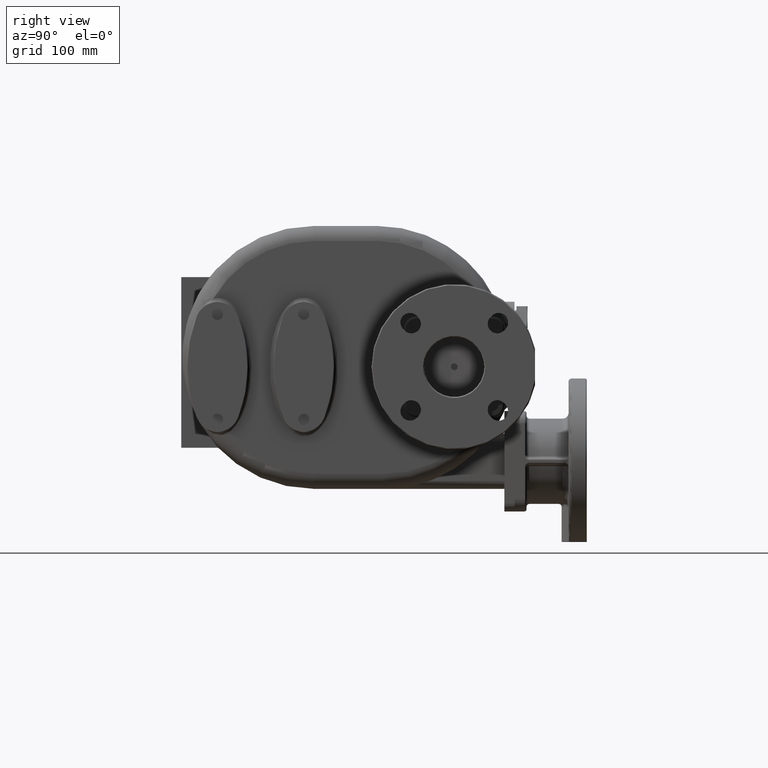
[diagram: clean part render]
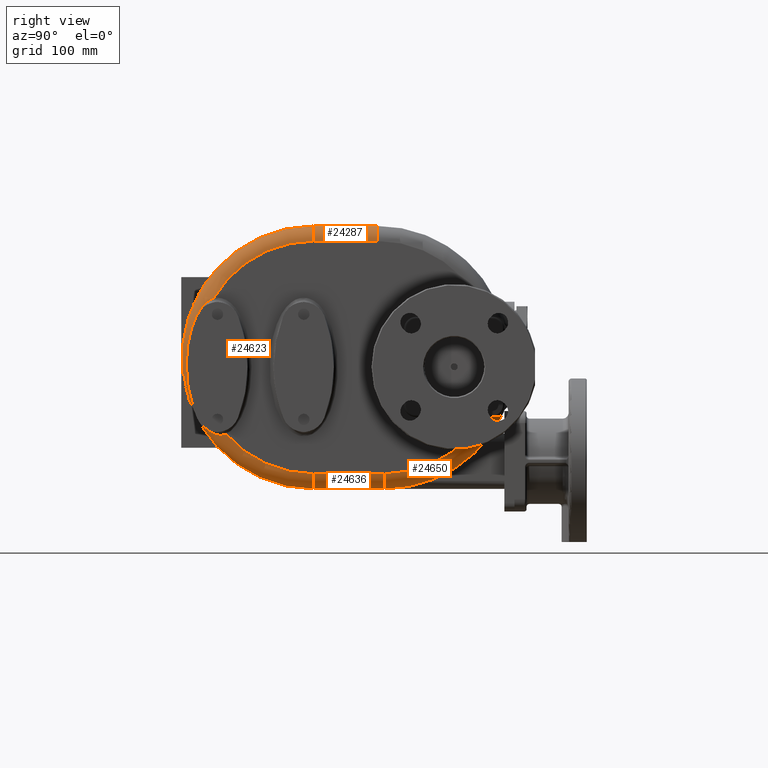
[diagram: same view with one multi-face feature highlighted, each face labeled with its STEP entity id]
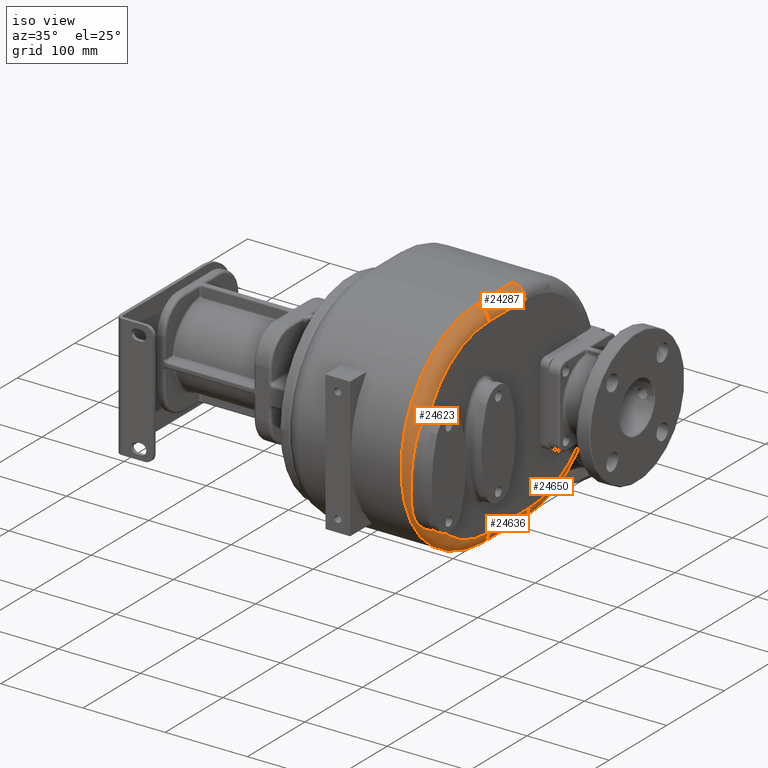
[diagram: same view with one multi-face feature highlighted, each face labeled with its STEP entity id]
A machine part, right view. The highlighted faces form ONE feature: a constant-radius fillet chain: 4 tangent blend faces with common blend radius 15 mm. The faces share edges in the B-rep.
A second angle (iso view) of the same feature is appended — it is thin or edge-on in the first view.
Their STEP definitions:
[1] entity #24636 (Cylinder):
#3109=DIRECTION('',(0.E0,1.E0,0.E0));
#3110=VECTOR('',#3109,7.030062667996E1);
#3111=CARTESIAN_POINT('',(7.6E1,1.32E2,-1.31E2));
#3112=LINE('',#3111,#3110);
#6059=DIRECTION('',(0.E0,1.E0,0.E0));
#6060=VECTOR('',#6059,7.030062668036E1);
#6061=CARTESIAN_POINT('',(9.1E1,1.32E2,-1.16E2));
#6062=LINE('',#6061,#6060);
#6550=CARTESIAN_POINT('',(7.6E1,1.32E2,-1.16E2));
#6551=DIRECTION('',(0.E0,1.E0,0.E0));
#6552=DIRECTION('',(1.E0,0.E0,0.E0));
#6553=AXIS2_PLACEMENT_3D('',#6550,#6551,#6552);
#6555=CARTESIAN_POINT('',(7.6E1,2.023006266804E2,-1.16E2));
#6556=DIRECTION('',(0.E0,1.E0,0.E0));
#6557=DIRECTION('',(1.E0,0.E0,0.E0));
#6558=AXIS2_PLACEMENT_3D('',#6555,#6556,#6557);
#16200=CARTESIAN_POINT('',(7.6E1,2.023006266804E2,-1.31E2));
#16202=VERTEX_POINT('',#16200);
#16204=CARTESIAN_POINT('',(9.1E1,2.023006266804E2,-1.16E2));
#16206=VERTEX_POINT('',#16204);
#16208=CARTESIAN_POINT('',(9.1E1,1.32E2,-1.16E2));
#16209=VERTEX_POINT('',#16208);
#16210=CARTESIAN_POINT('',(7.6E1,1.32E2,-1.31E2));
#16211=VERTEX_POINT('',#16210);
#24624=CARTESIAN_POINT('',(7.6E1,1.310242044709E2,-1.16E2));
#24625=DIRECTION('',(0.E0,1.E0,0.E0));
#24626=DIRECTION('',(1.E0,0.E0,0.E0));
#24627=AXIS2_PLACEMENT_3D('',#24624,#24625,#24626);
#24628=CYLINDRICAL_SURFACE('',#24627,1.5E1);
#24629=ORIENTED_EDGE('',*,*,#24312,.T.);
#24631=ORIENTED_EDGE('',*,*,#24630,.T.);
#24632=ORIENTED_EDGE('',*,*,#21161,.F.);
#24633=ORIENTED_EDGE('',*,*,#24614,.F.);
#24634=EDGE_LOOP('',(#24629,#24631,#24632,#24633));
#24635=FACE_OUTER_BOUND('',#24634,.F.);
#24636=ADVANCED_FACE('',(#24635),#24628,.T.);
#6554=CIRCLE('',#6553,1.5E1);
#6559=CIRCLE('',#6558,1.5E1);
#21161=EDGE_CURVE('',#16211,#16202,#3112,.T.);
#24312=EDGE_CURVE('',#16209,#16206,#6062,.T.);
#24614=EDGE_CURVE('',#16209,#16211,#6554,.T.);
#24630=EDGE_CURVE('',#16206,#16202,#6559,.T.);
[2] entity #24650 (Torus):
#2935=CARTESIAN_POINT('',(7.6E1,2.023006266804E2,0.E0));
#2936=DIRECTION('',(1.E0,0.E0,0.E0));
#2937=DIRECTION('',(0.E0,0.E0,-1.E0));
#2938=AXIS2_PLACEMENT_3D('',#2935,#2936,#2937);
#6054=CARTESIAN_POINT('',(9.1E1,2.023006266804E2,0.E0));
#6055=DIRECTION('',(1.E0,0.E0,0.E0));
#6056=DIRECTION('',(0.E0,0.E0,-1.E0));
#6057=AXIS2_PLACEMENT_3D('',#6054,#6055,#6056);
#6555=CARTESIAN_POINT('',(7.6E1,2.023006266804E2,-1.16E2));
#6556=DIRECTION('',(0.E0,1.E0,0.E0));
#6557=DIRECTION('',(1.E0,0.E0,0.E0));
#6558=AXIS2_PLACEMENT_3D('',#6555,#6556,#6557);
#6560=CARTESIAN_POINT('',(9.1E1,3.018784856652E2,-5.95E1));
#6561=CARTESIAN_POINT('',(9.1E1,3.021045793997E2,-5.95E1));
#6562=CARTESIAN_POINT('',(9.099247529577E1,3.025553700887E2,-5.95E1));
#6563=CARTESIAN_POINT('',(9.095877942902E1,3.032281306814E2,-5.95E1));
#6564=CARTESIAN_POINT('',(9.090297670481E1,3.038951711732E2,-5.95E1));
#6565=CARTESIAN_POINT('',(9.082533898447E1,3.045561848230E2,-5.95E1));
#6566=CARTESIAN_POINT('',(9.072618900241E1,3.052100700343E2,-5.95E1));
#6567=CARTESIAN_POINT('',(9.060606866465E1,3.058551014507E2,-5.95E1));
#6568=CARTESIAN_POINT('',(9.046532085886E1,3.064910243359E2,-5.95E1));
#6569=CARTESIAN_POINT('',(9.030446174334E1,3.071167137451E2,-5.95E1));
#6570=CARTESIAN_POINT('',(9.012416812976E1,3.077308880358E2,-5.95E1));
#6571=CARTESIAN_POINT('',(8.992476561438E1,3.083335534696E2,-5.95E1));
#6572=CARTESIAN_POINT('',(8.970701787199E1,3.089233765454E2,-5.95E1));
#6573=CARTESIAN_POINT('',(8.947155037391E1,3.094997301610E2,-5.95E1));
#6574=CARTESIAN_POINT('',(8.921877486803E1,3.100624564619E2,-5.95E1));
#6575=CARTESIAN_POINT('',(8.894964942893E1,3.106102894153E2,-5.95E1));
#6576=CARTESIAN_POINT('',(8.866449171453E1,3.111434001871E2,-5.95E1));
#6577=CARTESIAN_POINT('',(8.836412215284E1,3.116609467714E2,-5.95E1));
#6578=CARTESIAN_POINT('',(8.804928671257E1,3.121624044111E2,-5.95E1));
#6579=CARTESIAN_POINT('',(8.772032284966E1,3.126478650336E2,-5.95E1));
#6580=CARTESIAN_POINT('',(8.737828600942E1,3.131164037594E2,-5.95E1));
#6581=CARTESIAN_POINT('',(8.702334681916E1,3.135683644622E2,-5.95E1));
#6582=CARTESIAN_POINT('',(8.677889140815E1,3.138580000434E2,-5.95E1));
#6583=CARTESIAN_POINT('',(8.665469738305E1,3.14E2,-5.95E1));
#6585=CARTESIAN_POINT('',(8.665469738305E1,3.14E2,-5.95E1));
#6586=CARTESIAN_POINT('',(8.655351494824E1,3.141156891512E2,-5.95E1));
#6587=CARTESIAN_POINT('',(8.634613281661E1,3.143487470613E2,-5.949498139305E1));
#6588=CARTESIAN_POINT('',(8.601975212695E1,3.147026995757E2,-5.947174354910E1));
#6589=CARTESIAN_POINT('',(8.567831942409E1,3.150598069844E2,-5.943223755192E1));
#6590=CARTESIAN_POINT('',(8.532145876560E1,3.154195400498E2,-5.937589429284E1));
#6591=CARTESIAN_POINT('',(8.494890706375E1,3.157811958845E2,-5.930213464602E1));
#6592=CARTESIAN_POINT('',(8.456102338566E1,3.161434796703E2,-5.921055469137E1));
#6593=CARTESIAN_POINT('',(8.415729931118E1,3.165059052895E2,-5.910058326570E1));
#6594=CARTESIAN_POINT('',(8.373812457330E1,3.168671344613E2,-5.897188787596E1));
#6595=CARTESIAN_POINT('',(8.330390509472E1,3.172258775135E2,-5.882424041409E1));
#6596=CARTESIAN_POINT('',(8.285445970891E1,3.175813192969E2,-5.865724176450E1));
#6597=CARTESIAN_POINT('',(8.239076910163E1,3.179317382484E2,-5.847097348132E1));
#6598=CARTESIAN_POINT('',(8.191303471076E1,3.182760767459E2,-5.826530496868E1));
#6599=CARTESIAN_POINT('',(8.142183447541E1,3.186129949346E2,-5.804029410202E1));
#6600=CARTESIAN_POINT('',(8.091844525989E1,3.189407645365E2,-5.779642447333E1));
#6601=CARTESIAN_POINT('',(8.040311805510E1,3.192583960778E2,-5.753376731381E1));
#6602=CARTESIAN_POINT('',(7.987709788493E1,3.195643037291E2,-5.725294206411E1));
#6603=CARTESIAN_POINT('',(7.934180494365E1,3.198569458588E2,-5.695478977744E1));
#6604=CARTESIAN_POINT('',(7.879773613690E1,3.201353589586E2,-5.663970906175E1));
#6605=CARTESIAN_POINT('',(7.824660079015E1,3.203980122073E2,-5.630885596392E1));
#6606=CARTESIAN_POINT('',(7.769019623843E1,3.206435303026E2,-5.596357561904E1));
#6607=CARTESIAN_POINT('',(7.712928685250E1,3.208711131994E2,-5.560465243430E1));
#6608=CARTESIAN_POINT('',(7.656528108729E1,3.210797459732E2,-5.523331920124E1));
#6609=CARTESIAN_POINT('',(7.618857032667E1,3.212054942786E2,-5.497865640048E1));
#6610=CARTESIAN_POINT('',(7.6E1,3.212649998907E2,-5.484959349593E1));
#16200=CARTESIAN_POINT('',(7.6E1,2.023006266804E2,-1.31E2));
#16201=CARTESIAN_POINT('',(7.6E1,3.212649998907E2,-5.484959349594E1));
#16202=VERTEX_POINT('',#16200);
#16203=VERTEX_POINT('',#16201);
#16204=CARTESIAN_POINT('',(9.1E1,2.023006266804E2,-1.16E2));
#16205=CARTESIAN_POINT('',(9.1E1,3.018784856652E2,-5.95E1));
#16206=VERTEX_POINT('',#16204);
#16207=VERTEX_POINT('',#16205);
#16225=VERTEX_POINT('',#6583);
#24637=CARTESIAN_POINT('',(7.6E1,2.023006266804E2,0.E0));
#24638=DIRECTION('',(-1.E0,0.E0,0.E0));
#24639=DIRECTION('',(0.E0,-7.448751950118E-3,-9.999722576624E-1));
#24640=AXIS2_PLACEMENT_3D('',#24637,#24638,#24639);
#24641=TOROIDAL_SURFACE('',#24640,1.16E2,1.5E1);
#24642=ORIENTED_EDGE('',*,*,#21051,.F.);
#24643=ORIENTED_EDGE('',*,*,#24630,.F.);
#24644=ORIENTED_EDGE('',*,*,#24310,.T.);
#24646=ORIENTED_EDGE('',*,*,#24645,.T.);
#24647=ORIENTED_EDGE('',*,*,#20957,.T.);
#24648=EDGE_LOOP('',(#24642,#24643,#24644,#24646,#24647));
#24649=FACE_OUTER_BOUND('',#24648,.F.);
#24650=ADVANCED_FACE('',(#24649),#24641,.T.);
#2939=CIRCLE('',#2938,1.31E2);
#6058=CIRCLE('',#6057,1.16E2);
#6559=CIRCLE('',#6558,1.5E1);
#6584=B_SPLINE_CURVE_WITH_KNOTS('',3,(#6560,#6561,#6562,#6563,#6564,#6565,#6566,
#6567,#6568,#6569,#6570,#6571,#6572,#6573,#6574,#6575,#6576,#6577,#6578,#6579,
#6580,#6581,#6582,#6583),.UNSPECIFIED.,.F.,.F.,(4,1,1,1,1,1,1,1,1,1,1,1,1,1,1,1,
1,1,1,1,1,4),(0.E0,4.761904761905E-2,9.523809523810E-2,1.428571428571E-1,
1.904761904762E-1,2.380952380952E-1,2.857142857143E-1,3.333333333333E-1,
3.809523809524E-1,4.285714285714E-1,4.761904761905E-1,5.238095238095E-1,
5.714285714286E-1,6.190476190476E-1,6.666666666667E-1,7.142857142857E-1,
7.619047619048E-1,8.095238095238E-1,8.571428571429E-1,9.047619047619E-1,
9.523809523810E-1,1.E0),.UNSPECIFIED.);
#6611=B_SPLINE_CURVE_WITH_KNOTS('',3,(#6585,#6586,#6587,#6588,#6589,#6590,#6591,
#6592,#6593,#6594,#6595,#6596,#6597,#6598,#6599,#6600,#6601,#6602,#6603,#6604,
#6605,#6606,#6607,#6608,#6609,#6610),.UNSPECIFIED.,.F.,.F.,(4,1,1,1,1,1,1,1,1,1,
1,1,1,1,1,1,1,1,1,1,1,1,1,4),(0.E0,4.347826086957E-2,8.695652173913E-2,
1.304347826087E-1,1.739130434783E-1,2.173913043478E-1,2.608695652174E-1,
3.043478260870E-1,3.478260869565E-1,3.913043478261E-1,4.347826086957E-1,
4.782608695652E-1,5.217391304348E-1,5.652173913043E-1,6.086956521739E-1,
6.521739130435E-1,6.956521739130E-1,7.391304347826E-1,7.826086956522E-1,
8.260869565217E-1,8.695652173913E-1,9.130434782609E-1,9.565217391304E-1,1.E0),
.UNSPECIFIED.);
#20957=EDGE_CURVE('',#16225,#16203,#6611,.T.);
#21051=EDGE_CURVE('',#16202,#16203,#2939,.T.);
#24310=EDGE_CURVE('',#16206,#16207,#6058,.T.);
#24630=EDGE_CURVE('',#16206,#16202,#6559,.T.);
#24645=EDGE_CURVE('',#16207,#16225,#6584,.T.);
[3] entity #24623 (Torus):
#5985=CARTESIAN_POINT('',(7.6E1,1.32E2,0.E0));
#5986=DIRECTION('',(1.E0,0.E0,0.E0));
#5987=DIRECTION('',(0.E0,0.E0,1.E0));
#5988=AXIS2_PLACEMENT_3D('',#5985,#5986,#5987);
#6038=CARTESIAN_POINT('',(9.100004992876E1,3.217760166446E1,5.908881446780E1));
#6040=CARTESIAN_POINT('',(9.1E1,1.32E2,0.E0));
#6041=DIRECTION('',(1.E0,0.E0,0.E0));
#6042=DIRECTION('',(0.E0,0.E0,1.E0));
#6043=AXIS2_PLACEMENT_3D('',#6040,#6041,#6042);
#6063=CARTESIAN_POINT('',(9.1E1,1.32E2,0.E0));
#6064=DIRECTION('',(1.E0,0.E0,0.E0));
#6065=DIRECTION('',(0.E0,-7.528766622300E-1,-6.581616302015E-1));
#6066=AXIS2_PLACEMENT_3D('',#6063,#6064,#6065);
#6068=CARTESIAN_POINT('',(9.099992128087E1,4.466630732680E1,-7.634674873565E1));
#6417=CARTESIAN_POINT('',(8.960221230007E1,3.730528943384E1,-7.743265395225E1));
#6418=CARTESIAN_POINT('',(8.966119599261E1,3.748556784864E1,-7.745264553512E1));
#6419=CARTESIAN_POINT('',(8.977533445812E1,3.784224499369E1,-7.748566188618E1));
#6420=CARTESIAN_POINT('',(8.993455277509E1,3.836493352687E1,-7.751599683760E1));
#6421=CARTESIAN_POINT('',(9.008217771221E1,3.887600892426E1,-7.752800602744E1));
#6422=CARTESIAN_POINT('',(9.021837890166E1,3.937597276208E1,-7.752270656139E1));
#6423=CARTESIAN_POINT('',(9.034340210510E1,3.986548667420E1,-7.750088415271E1));
#6424=CARTESIAN_POINT('',(9.045749398186E1,4.034536609313E1,-7.746311872458E1));
#6425=CARTESIAN_POINT('',(9.056068217088E1,4.081589216043E1,-7.741022537309E1));
#6426=CARTESIAN_POINT('',(9.065295360741E1,4.127709290725E1,-7.734298641365E1));
#6427=CARTESIAN_POINT('',(9.073434113459E1,4.172910677813E1,-7.726206389177E1));
#6428=CARTESIAN_POINT('',(9.080489762293E1,4.217216921682E1,-7.716800531527E1));
#6429=CARTESIAN_POINT('',(9.086466919207E1,4.260653141057E1,-7.706127625219E1));
#6430=CARTESIAN_POINT('',(9.091370518389E1,4.303258956510E1,-7.694213014077E1));
#6431=CARTESIAN_POINT('',(9.095202409292E1,4.345106014225E1,-7.681101094544E1));
#6432=CARTESIAN_POINT('',(9.097955356195E1,4.386260079560E1,-7.666829607234E1));
#6433=CARTESIAN_POINT('',(9.099628691714E1,4.426769310846E1,-7.651407762407E1));
#6434=CARTESIAN_POINT('',(9.099990210030E1,4.453413928416E1,-7.640381428165E1));
#6435=CARTESIAN_POINT('',(9.099992128087E1,4.466630732680E1,-7.634674873565E1));
#6437=CARTESIAN_POINT('',(7.6E1,1.32E2,1.16E2));
#6438=DIRECTION('',(0.E0,-1.E0,0.E0));
#6439=DIRECTION('',(1.E0,0.E0,0.E0));
#6440=AXIS2_PLACEMENT_3D('',#6437,#6438,#6439);
#6442=CARTESIAN_POINT('',(9.100004992876E1,3.217760166446E1,5.908881446780E1));
#6443=CARTESIAN_POINT('',(9.100007636805E1,3.199936441872E1,5.902756214247E1));
#6444=CARTESIAN_POINT('',(9.099698553052E1,3.163982287209E1,5.889667820385E1));
#6445=CARTESIAN_POINT('',(9.098376567845E1,3.109136716694E1,5.867782186462E1));
#6446=CARTESIAN_POINT('',(9.096183605163E1,3.053288448122E1,5.843314148002E1));
#6447=CARTESIAN_POINT('',(9.093138001698E1,2.996373313162E1,5.816136472743E1));
#6448=CARTESIAN_POINT('',(9.089252014908E1,2.938357979888E1,5.786040406304E1));
#6449=CARTESIAN_POINT('',(9.084537131029E1,2.879184317567E1,5.752845195890E1));
#6450=CARTESIAN_POINT('',(9.079004685188E1,2.818800045239E1,5.716336947492E1));
#6451=CARTESIAN_POINT('',(9.072664354114E1,2.757133933061E1,5.676272932788E1));
#6452=CARTESIAN_POINT('',(9.065526179572E1,2.694123289484E1,5.632390058336E1));
#6453=CARTESIAN_POINT('',(9.057614157993E1,2.629813139456E1,5.584481774212E1));
#6454=CARTESIAN_POINT('',(9.048972866945E1,2.564364635198E1,5.532431861169E1));
#6455=CARTESIAN_POINT('',(9.039652274217E1,2.497893415924E1,5.476075655893E1));
#6456=CARTESIAN_POINT('',(9.029689532617E1,2.430396923094E1,5.415151027709E1));
#6457=CARTESIAN_POINT('',(9.019126451242E1,2.361901405585E1,5.349412269044E1));
#6458=CARTESIAN_POINT('',(9.008009609437E1,2.292451436921E1,5.278618405103E1));
#6459=CARTESIAN_POINT('',(8.996395083572E1,2.222103203733E1,5.202493073344E1));
#6460=CARTESIAN_POINT('',(8.984340028139E1,2.150926643247E1,5.120783882075E1));
#6461=CARTESIAN_POINT('',(8.971902518425E1,2.079005043897E1,5.033254529406E1));
#6462=CARTESIAN_POINT('',(8.959151370096E1,2.006431422641E1,4.939621843854E1));
#6463=CARTESIAN_POINT('',(8.946148264607E1,1.933301482188E1,4.839632911164E1));
#6464=CARTESIAN_POINT('',(8.932962413104E1,1.859729915611E1,4.733016008625E1));
#6465=CARTESIAN_POINT('',(8.919657294292E1,1.785814871090E1,4.619460272109E1));
#6466=CARTESIAN_POINT('',(8.906290807489E1,1.711670062706E1,4.498673899574E1));
#6467=CARTESIAN_POINT('',(8.892929822133E1,1.637438154261E1,4.370343938799E1));
#6468=CARTESIAN_POINT('',(8.879626014646E1,1.563269088149E1,4.234192771654E1));
#6469=CARTESIAN_POINT('',(8.866437332139E1,1.489340462806E1,4.089919940222E1));
#6470=CARTESIAN_POINT('',(8.853404368806E1,1.415835875385E1,3.937248554217E1));
#6471=CARTESIAN_POINT('',(8.840568192989E1,1.342974431234E1,3.775915773161E1));
#6472=CARTESIAN_POINT('',(8.827955039291E1,1.270991295150E1,3.605686737136E1));
#6473=CARTESIAN_POINT('',(8.815580713702E1,1.200150422566E1,3.426367637203E1));
#6474=CARTESIAN_POINT('',(8.803451067742E1,1.130745796645E1,3.237812287469E1));
#6475=CARTESIAN_POINT('',(8.791551607745E1,1.063088939619E1,3.039934629506E1));
#6476=CARTESIAN_POINT('',(8.779858958586E1,9.975292856679E0,2.832740127578E1));
#6477=CARTESIAN_POINT('',(8.768328973302E1,9.344264251508E0,2.616302257175E1));
#6478=CARTESIAN_POINT('',(8.756901142669E1,8.741625494295E0,2.390817649814E1));
#6479=CARTESIAN_POINT('',(8.745503977606E1,8.171316457510E0,2.156571994254E1));
#6480=CARTESIAN_POINT('',(8.734041095985E1,7.637196772144E0,1.913972249549E1));
#6481=CARTESIAN_POINT('',(8.722417582007E1,7.143218730566E0,1.663535643675E1));
#6482=CARTESIAN_POINT('',(8.710510691631E1,6.692946407838E0,1.405871169313E1));
#6483=CARTESIAN_POINT('',(8.698210103972E1,6.289921616115E0,1.141693712942E1));
#6484=CARTESIAN_POINT('',(8.685381063122E1,5.937094030613E0,8.717805090750E0));
#6485=CARTESIAN_POINT('',(8.671910493686E1,5.637246278661E0,5.969765487312E0));
#6486=CARTESIAN_POINT('',(8.657667135485E1,5.392467110781E0,3.181733353026E0));
#6487=CARTESIAN_POINT('',(8.642547877545E1,5.204564031128E0,3.625121461631E-1));
#6488=CARTESIAN_POINT('',(8.626440440758E1,5.074672468762E0,-2.478950905761E0));
#6489=CARTESIAN_POINT('',(8.609258923710E1,5.003584198303E0,-5.333861008222E0));
#6490=CARTESIAN_POINT('',(8.590928381386E1,4.991582913455E0,-8.193504169599E0));
#6491=CARTESIAN_POINT('',(8.571392868197E1,5.038517600153E0,-1.104942843467E1));
#6492=CARTESIAN_POINT('',(8.550618328658E1,5.143890695131E0,-1.389396742673E1));
#6493=CARTESIAN_POINT('',(8.528591189428E1,5.306830254542E0,-1.671970308565E1));
#6494=CARTESIAN_POINT('',(8.505322508726E1,5.526246597174E0,-1.952027002536E1));
#6495=CARTESIAN_POINT('',(8.480851865363E1,5.800824988736E0,-2.228966868784E1));
#6496=CARTESIAN_POINT('',(8.455245293639E1,6.129092025728E0,-2.502268420185E1));
#6497=CARTESIAN_POINT('',(8.428610206359E1,6.509503483262E0,-2.771457590879E1));
#6498=CARTESIAN_POINT('',(8.401093025708E1,6.940367828112E0,-3.036085270430E1));
#6499=CARTESIAN_POINT('',(8.372895665335E1,7.419827171209E0,-3.295689198882E1));
#6500=CARTESIAN_POINT('',(8.344297158895E1,7.945646792480E0,-3.549702089297E1));
#6501=CARTESIAN_POINT('',(8.315680419749E1,8.514719204449E0,-3.797312861860E1));
#6502=CARTESIAN_POINT('',(8.287529834010E1,9.122605742110E0,-4.037432678308E1));
#6503=CARTESIAN_POINT('',(8.260516545070E1,9.762096959887E0,-4.268274364434E1));
#6504=CARTESIAN_POINT('',(8.235371721921E1,1.042366106871E1,-4.487859390559E1));
#6505=CARTESIAN_POINT('',(8.212879357618E1,1.109395866995E1,-4.693672090352E1));
#6506=CARTESIAN_POINT('',(8.193629532111E1,1.176151855348E1,-4.884382173378E1));
#6507=CARTESIAN_POINT('',(8.177947704243E1,1.241492445083E1,-5.059109671683E1));
#6508=CARTESIAN_POINT('',(8.165877515772E1,1.304992576391E1,-5.218876882868E1));
#6509=CARTESIAN_POINT('',(8.157249104970E1,1.366459310073E1,-5.365088691133E1));
#6510=CARTESIAN_POINT('',(8.151836964067E1,1.426042951886E1,-5.499601623E1));
#6511=CARTESIAN_POINT('',(8.149389895703E1,1.484115242833E1,-5.624409904492E1));
#6512=CARTESIAN_POINT('',(8.149678980841E1,1.540999209498E1,-5.741087152800E1));
#6513=CARTESIAN_POINT('',(8.152538645776E1,1.597138318310E1,-5.851172657525E1));
#6514=CARTESIAN_POINT('',(8.157841561467E1,1.652938842763E1,-5.955907445826E1));
#6515=CARTESIAN_POINT('',(8.165460879582E1,1.708685816079E1,-6.056160515986E1));
#6516=CARTESIAN_POINT('',(8.175379088139E1,1.764808399557E1,-6.152871038098E1));
#6517=CARTESIAN_POINT('',(8.187518750121E1,1.821517638723E1,-6.246524090572E1));
#6518=CARTESIAN_POINT('',(8.201831305747E1,1.879058416702E1,-6.337580074625E1));
#6519=CARTESIAN_POINT('',(8.218321216974E1,1.937686021444E1,-6.426404250334E1));
#6520=CARTESIAN_POINT('',(8.236898297762E1,1.997468851970E1,-6.513067987347E1));
#6521=CARTESIAN_POINT('',(8.257506904976E1,2.058539469806E1,-6.597692572130E1));
#6522=CARTESIAN_POINT('',(8.280063936660E1,2.120935853198E1,-6.680231039275E1));
#6523=CARTESIAN_POINT('',(8.304419111343E1,2.184588942775E1,-6.760512398938E1));
#6524=CARTESIAN_POINT('',(8.330428743450E1,2.249456119772E1,-6.838403703343E1));
#6525=CARTESIAN_POINT('',(8.357903148266E1,2.315400700423E1,-6.913673809326E1));
#6526=CARTESIAN_POINT('',(8.386631584092E1,2.382261293538E1,-6.986097805959E1));
#6527=CARTESIAN_POINT('',(8.416390406545E1,2.449864819059E1,-7.055476109066E1));
#6528=CARTESIAN_POINT('',(8.446958804149E1,2.518031616486E1,-7.121629351452E1));
#6529=CARTESIAN_POINT('',(8.478104773282E1,2.586559940078E1,-7.184396057734E1));
#6530=CARTESIAN_POINT('',(8.509604607384E1,2.655263593098E1,-7.243670430052E1));
#6531=CARTESIAN_POINT('',(8.541263719199E1,2.723984950528E1,-7.299388956697E1));
#6532=CARTESIAN_POINT('',(8.572879685755E1,2.792540663508E1,-7.351499446104E1));
#6533=CARTESIAN_POINT('',(8.604273659005E1,2.860780796271E1,-7.400004911787E1));
#6534=CARTESIAN_POINT('',(8.635302013444E1,2.928592989437E1,-7.444940440470E1));
#6535=CARTESIAN_POINT('',(8.665821229915E1,2.995852057843E1,-7.486351476718E1));
#6536=CARTESIAN_POINT('',(8.695702873435E1,3.062445933393E1,-7.524307499616E1));
#6537=CARTESIAN_POINT('',(8.724834844355E1,3.128267992209E1,-7.558884912061E1));
#6538=CARTESIAN_POINT('',(8.753110573001E1,3.193206404960E1,-7.590170774968E1));
#6539=CARTESIAN_POINT('',(8.780439476127E1,3.257166358542E1,-7.618273588602E1));
#6540=CARTESIAN_POINT('',(8.806772108883E1,3.320112841914E1,-7.643316616457E1));
#6541=CARTESIAN_POINT('',(8.832063069555E1,3.382012580347E1,-7.665425945596E1));
#6542=CARTESIAN_POINT('',(8.856276886834E1,3.442844288494E1,-7.684730988446E1));
#6543=CARTESIAN_POINT('',(8.879387884129E1,3.502601865311E1,-7.701364167627E1));
#6544=CARTESIAN_POINT('',(8.901376203351E1,3.561278269415E1,-7.715446083904E1));
#6545=CARTESIAN_POINT('',(8.922217495731E1,3.618857535885E1,-7.727105456298E1));
#6546=CARTESIAN_POINT('',(8.941900322598E1,3.675331203326E1,-7.736451299167E1));
#6547=CARTESIAN_POINT('',(8.954244871164E1,3.712256389905E1,-7.741231658876E1));
#6548=CARTESIAN_POINT('',(8.960221230007E1,3.730528943384E1,-7.743265395225E1));
#6550=CARTESIAN_POINT('',(7.6E1,1.32E2,-1.16E2));
#6551=DIRECTION('',(0.E0,1.E0,0.E0));
#6552=DIRECTION('',(1.E0,0.E0,0.E0));
#6553=AXIS2_PLACEMENT_3D('',#6550,#6551,#6552);
#16208=CARTESIAN_POINT('',(9.1E1,1.32E2,-1.16E2));
#16209=VERTEX_POINT('',#16208);
#16210=CARTESIAN_POINT('',(7.6E1,1.32E2,-1.31E2));
#16211=VERTEX_POINT('',#16210);
#16212=CARTESIAN_POINT('',(7.6E1,1.32E2,1.31E2));
#16213=VERTEX_POINT('',#16212);
#16215=CARTESIAN_POINT('',(9.1E1,1.32E2,1.16E2));
#16217=VERTEX_POINT('',#16215);
#16269=VERTEX_POINT('',#6038);
#16271=VERTEX_POINT('',#6068);
#16273=VERTEX_POINT('',#6417);
#24607=CARTESIAN_POINT('',(7.6E1,1.32E2,0.E0));
#24608=DIRECTION('',(-1.E0,0.E0,0.E0));
#24609=DIRECTION('',(0.E0,7.448751950117E-3,9.999722576624E-1));
#24610=AXIS2_PLACEMENT_3D('',#24607,#24608,#24609);
#24611=TOROIDAL_SURFACE('',#24610,1.16E2,1.5E1);
#24612=ORIENTED_EDGE('',*,*,#24597,.T.);
#24613=ORIENTED_EDGE('',*,*,#24314,.T.);
#24615=ORIENTED_EDGE('',*,*,#24614,.T.);
#24616=ORIENTED_EDGE('',*,*,#24244,.F.);
#24617=ORIENTED_EDGE('',*,*,#24280,.F.);
#24618=ORIENTED_EDGE('',*,*,#24295,.T.);
#24620=ORIENTED_EDGE('',*,*,#24619,.T.);
#24621=EDGE_LOOP('',(#24612,#24613,#24615,#24616,#24617,#24618,#24620));
#24622=FACE_OUTER_BOUND('',#24621,.F.);
#24623=ADVANCED_FACE('',(#24622),#24611,.T.);
#5989=CIRCLE('',#5988,1.31E2);
#6044=CIRCLE('',#6043,1.16E2);
#6067=CIRCLE('',#6066,1.16E2);
#6436=B_SPLINE_CURVE_WITH_KNOTS('',3,(#6417,#6418,#6419,#6420,#6421,#6422,#6423,
#6424,#6425,#6426,#6427,#6428,#6429,#6430,#6431,#6432,#6433,#6434,#6435),
.UNSPECIFIED.,.F.,.F.,(4,1,1,1,1,1,1,1,1,1,1,1,1,1,1,1,4),(0.E0,6.25E-2,1.25E-1,
1.875E-1,2.5E-1,3.125E-1,3.75E-1,4.375E-1,5.E-1,5.625E-1,6.25E-1,6.875E-1,
7.5E-1,8.125E-1,8.75E-1,9.375E-1,1.E0),.UNSPECIFIED.);
#6441=CIRCLE('',#6440,1.5E1);
#6549=B_SPLINE_CURVE_WITH_KNOTS('',3,(#6442,#6443,#6444,#6445,#6446,#6447,#6448,
#6449,#6450,#6451,#6452,#6453,#6454,#6455,#6456,#6457,#6458,#6459,#6460,#6461,
#6462,#6463,#6464,#6465,#6466,#6467,#6468,#6469,#6470,#6471,#6472,#6473,#6474,
#6475,#6476,#6477,#6478,#6479,#6480,#6481,#6482,#6483,#6484,#6485,#6486,#6487,
#6488,#6489,#6490,#6491,#6492,#6493,#6494,#6495,#6496,#6497,#6498,#6499,#6500,
#6501,#6502,#6503,#6504,#6505,#6506,#6507,#6508,#6509,#6510,#6511,#6512,#6513,
#6514,#6515,#6516,#6517,#6518,#6519,#6520,#6521,#6522,#6523,#6524,#6525,#6526,
#6527,#6528,#6529,#6530,#6531,#6532,#6533,#6534,#6535,#6536,#6537,#6538,#6539,
#6540,#6541,#6542,#6543,#6544,#6545,#6546,#6547,#6548),.UNSPECIFIED.,.F.,.F.,(4,
1,1,1,1,1,1,1,1,1,1,1,1,1,1,1,1,1,1,1,1,1,1,1,1,1,1,1,1,1,1,1,1,1,1,1,1,1,1,1,1,
1,1,1,1,1,1,1,1,1,1,1,1,1,1,1,1,1,1,1,1,1,1,1,1,1,1,1,1,1,1,1,1,1,1,1,1,1,1,1,1,
1,1,1,1,1,1,1,1,1,1,1,1,1,1,1,1,1,1,1,1,1,1,1,4),(0.E0,9.615384615385E-3,
1.923076923077E-2,2.884615384615E-2,3.846153846154E-2,4.807692307692E-2,
5.769230769231E-2,6.730769230769E-2,7.692307692308E-2,8.653846153846E-2,
9.615384615385E-2,1.057692307692E-1,1.153846153846E-1,1.25E-1,1.346153846154E-1,
1.442307692308E-1,1.538461538462E-1,1.634615384615E-1,1.730769230769E-1,
1.826923076923E-1,1.923076923077E-1,2.019230769231E-1,2.115384615385E-1,
2.211538461538E-1,2.307692307692E-1,2.403846153846E-1,2.5E-1,2.596153846154E-1,
2.692307692308E-1,2.788461538462E-1,2.884615384615E-1,2.980769230769E-1,
3.076923076923E-1,3.173076923077E-1,3.269230769231E-1,3.365384615385E-1,
3.461538461538E-1,3.557692307692E-1,3.653846153846E-1,3.75E-1,3.846153846154E-1,
3.942307692308E-1,4.038461538462E-1,4.134615384615E-1,4.230769230769E-1,
4.326923076923E-1,4.423076923077E-1,4.519230769231E-1,4.615384615385E-1,
4.711538461538E-1,4.807692307692E-1,4.903846153846E-1,5.E-1,5.096153846154E-1,
5.192307692308E-1,5.288461538462E-1,5.384615384615E-1,5.480769230769E-1,
5.576923076923E-1,5.673076923077E-1,5.769230769231E-1,5.865384615385E-1,
5.961538461538E-1,6.057692307692E-1,6.153846153846E-1,6.25E-1,6.346153846154E-1,
6.442307692308E-1,6.538461538462E-1,6.634615384615E-1,6.730769230769E-1,
6.826923076923E-1,6.923076923077E-1,7.019230769231E-1,7.115384615385E-1,
7.211538461538E-1,7.307692307692E-1,7.403846153846E-1,7.5E-1,7.596153846154E-1,
7.692307692308E-1,7.788461538462E-1,7.884615384615E-1,7.980769230769E-1,
8.076923076923E-1,8.173076923077E-1,8.269230769231E-1,8.365384615385E-1,
8.461538461538E-1,8.557692307692E-1,8.653846153846E-1,8.75E-1,8.846153846154E-1,
8.942307692308E-1,9.038461538462E-1,9.134615384615E-1,9.230769230769E-1,
9.326923076923E-1,9.423076923077E-1,9.519230769231E-1,9.615384615385E-1,
9.711538461538E-1,9.807692307692E-1,9.903846153846E-1,1.E0),.UNSPECIFIED.);
#6554=CIRCLE('',#6553,1.5E1);
#24244=EDGE_CURVE('',#16213,#16211,#5989,.T.);
#24280=EDGE_CURVE('',#16217,#16213,#6441,.T.);
#24295=EDGE_CURVE('',#16217,#16269,#6044,.T.);
#24314=EDGE_CURVE('',#16271,#16209,#6067,.T.);
#24597=EDGE_CURVE('',#16273,#16271,#6436,.T.);
#24614=EDGE_CURVE('',#16209,#16211,#6554,.T.);
#24619=EDGE_CURVE('',#16269,#16273,#6549,.T.);
[4] entity #24287 (Cylinder):
#6016=DIRECTION('',(0.E0,-1.E0,0.E0));
#6017=VECTOR('',#6016,6.337137782133E1);
#6018=CARTESIAN_POINT('',(7.6E1,1.953713778214E2,1.31E2));
#6019=LINE('',#6018,#6017);
#6024=CARTESIAN_POINT('',(7.6E1,1.953713778214E2,1.16E2));
#6025=DIRECTION('',(0.E0,-1.E0,0.E0));
#6026=DIRECTION('',(1.E0,0.E0,0.E0));
#6027=AXIS2_PLACEMENT_3D('',#6024,#6025,#6026);
#6045=DIRECTION('',(0.E0,-1.E0,0.E0));
#6046=VECTOR('',#6045,6.337137782137E1);
#6047=CARTESIAN_POINT('',(9.1E1,1.953713778214E2,1.16E2));
#6048=LINE('',#6047,#6046);
#6437=CARTESIAN_POINT('',(7.6E1,1.32E2,1.16E2));
#6438=DIRECTION('',(0.E0,-1.E0,0.E0));
#6439=DIRECTION('',(1.E0,0.E0,0.E0));
#6440=AXIS2_PLACEMENT_3D('',#6437,#6438,#6439);
#16212=CARTESIAN_POINT('',(7.6E1,1.32E2,1.31E2));
#16213=VERTEX_POINT('',#16212);
#16214=CARTESIAN_POINT('',(9.1E1,1.953713778214E2,1.16E2));
#16215=CARTESIAN_POINT('',(9.1E1,1.32E2,1.16E2));
#16216=VERTEX_POINT('',#16214);
#16217=VERTEX_POINT('',#16215);
#16218=CARTESIAN_POINT('',(7.6E1,1.953713778214E2,1.31E2));
#16219=VERTEX_POINT('',#16218);
#24273=CARTESIAN_POINT('',(7.6E1,1.963471733505E2,1.16E2));
#24274=DIRECTION('',(0.E0,-1.E0,0.E0));
#24275=DIRECTION('',(1.E0,0.E0,0.E0));
#24276=AXIS2_PLACEMENT_3D('',#24273,#24274,#24275);
#24277=CYLINDRICAL_SURFACE('',#24276,1.5E1);
#24279=ORIENTED_EDGE('',*,*,#24278,.T.);
#24281=ORIENTED_EDGE('',*,*,#24280,.T.);
#24282=ORIENTED_EDGE('',*,*,#24267,.F.);
#24284=ORIENTED_EDGE('',*,*,#24283,.F.);
#24285=EDGE_LOOP('',(#24279,#24281,#24282,#24284));
#24286=FACE_OUTER_BOUND('',#24285,.F.);
#24287=ADVANCED_FACE('',(#24286),#24277,.T.);
#6028=CIRCLE('',#6027,1.5E1);
#6441=CIRCLE('',#6440,1.5E1);
#24267=EDGE_CURVE('',#16219,#16213,#6019,.T.);
#24278=EDGE_CURVE('',#16216,#16217,#6048,.T.);
#24280=EDGE_CURVE('',#16217,#16213,#6441,.T.);
#24283=EDGE_CURVE('',#16216,#16219,#6028,.T.);